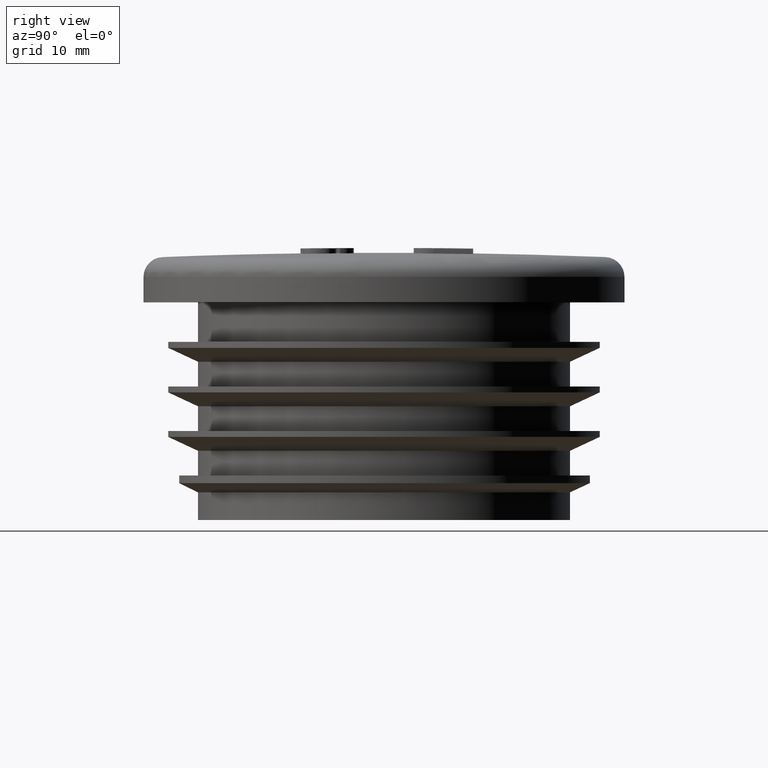
[diagram: clean part render]
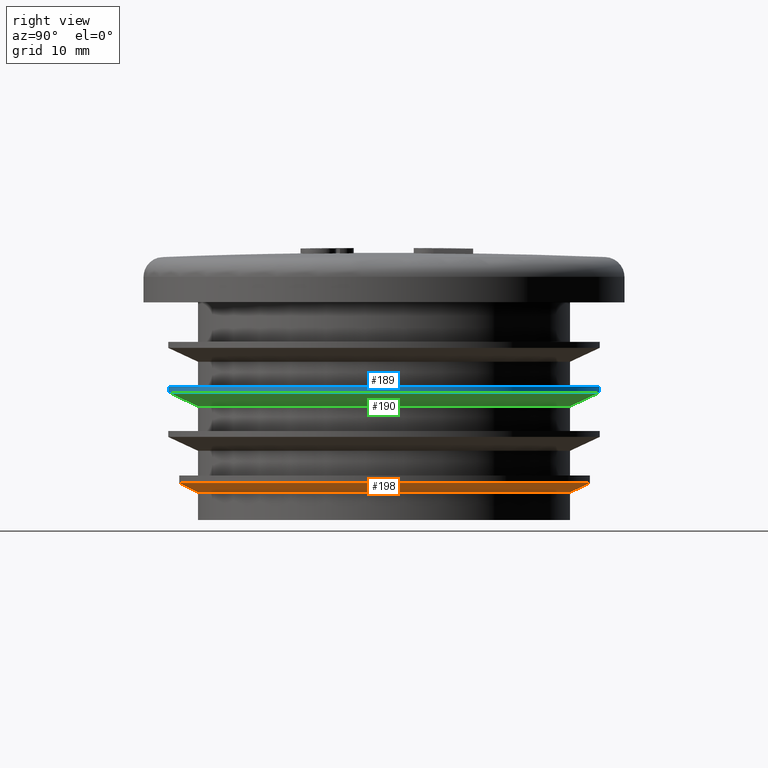
[diagram: same view with three faces highlighted in distinct colors, each labeled with its STEP entity id]
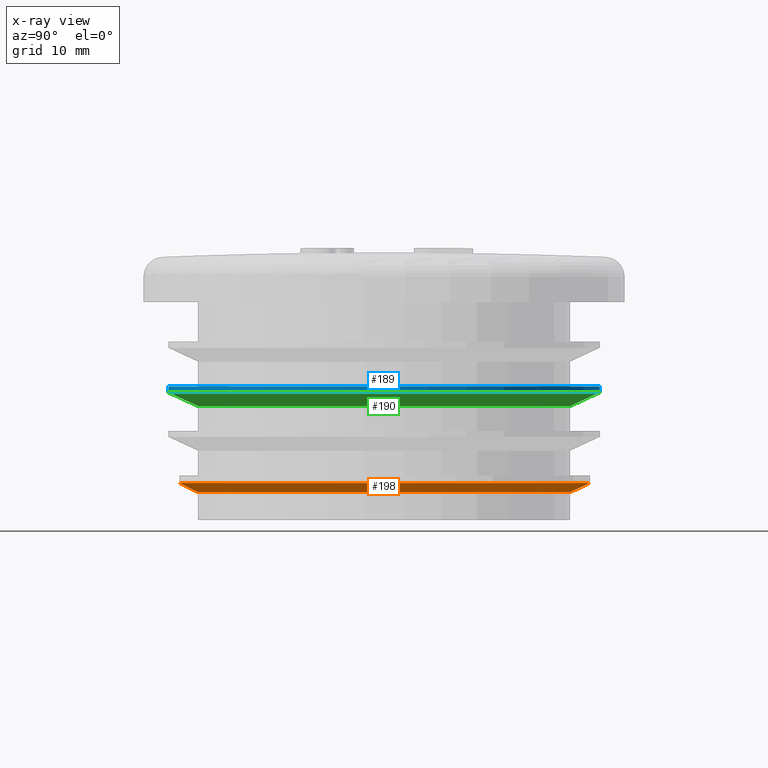
[diagram: x-ray of the same camera — body ghosted, the three highlighted faces saturated]
A machine part, right view with three faces highlighted in distinct colors.
The next image is the same camera in x-ray (body ghosted, the three faces saturated) — at least one of them is partly hidden behind the body in this view.
Their STEP definitions:

[orange] entity #198 — the highlighted conical surface has half-angle 65 deg.
#198 = ADVANCED_FACE( '', ( #491, #492 ), #493, .T. );
#491 = FACE_BOUND( '', #1132, .T. );
#492 = FACE_OUTER_BOUND( '', #1133, .T. );
#493 = CONICAL_SURFACE( '', #1134, 20.8000000000000, 1.13446401379631 );
#1132 = EDGE_LOOP( '', ( #2188 ) );
#1133 = EDGE_LOOP( '', ( #2189 ) );
#1134 = AXIS2_PLACEMENT_3D( '', #2190, #2191, #2192 );
#2188 = ORIENTED_EDGE( '', *, *, #2582, .F. );
#2189 = ORIENTED_EDGE( '', *, *, #2581, .T. );
#2190 = CARTESIAN_POINT( '', ( 0.000000000000000, -1.11851776756822E-015, 3.73261531631000 ) );
#2191 = DIRECTION( '', ( 0.000000000000000, 6.12303176911189E-017, 1.00000000000000 ) );
#2192 = DIRECTION( '', ( 0.000000000000000, -1.00000000000000, 6.12303176911189E-017 ) );
#2581 = EDGE_CURVE( '', #3118, #3118, #3119, .T. );
#2582 = EDGE_CURVE( '', #3120, #3120, #3121, .T. );
#3118 = VERTEX_POINT( '', #4954 );
#3119 = CIRCLE( '', #4955, 20.8000000000000 );
#3120 = VERTEX_POINT( '', #4956 );
#3121 = CIRCLE( '', #4957, 18.8000000000000 );
#4954 = CARTESIAN_POINT( '', ( 0.000000000000000, 20.8000000000000, 3.73261531631000 ) );
#4955 = AXIS2_PLACEMENT_3D( '', #5127, #5128, #5129 );
#4956 = CARTESIAN_POINT( '', ( 0.000000000000000, 18.8000000000000, 2.79999999999999 ) );
#4957 = AXIS2_PLACEMENT_3D( '', #5130, #5131, #5132 );
#5127 = CARTESIAN_POINT( '', ( 0.000000000000000, -1.11851776756822E-015, 3.73261531631000 ) );
#5128 = DIRECTION( '', ( 0.000000000000000, -6.12303176911189E-017, -1.00000000000000 ) );
#5129 = DIRECTION( '', ( 0.000000000000000, 1.00000000000000, -6.12303176911189E-017 ) );
#5130 = CARTESIAN_POINT( '', ( 0.000000000000000, -1.17562209966948E-015, 2.79999999999999 ) );
#5131 = DIRECTION( '', ( 0.000000000000000, -6.12303176911189E-017, -1.00000000000000 ) );
#5132 = DIRECTION( '', ( 0.000000000000000, 1.00000000000000, -6.12303176911189E-017 ) );

[blue] entity #189 — the highlighted cylindrical surface (bore or boss wall) has radius 21.8 mm, axis along (0, 0, 1).
#189 = ADVANCED_FACE( '', ( #464, #465 ), #466, .T. );
#464 = FACE_OUTER_BOUND( '', #1105, .T. );
#465 = FACE_OUTER_BOUND( '', #1106, .T. );
#466 = CYLINDRICAL_SURFACE( '', #1107, 21.8000000000000 );
#1105 = EDGE_LOOP( '', ( #2143 ) );
#1106 = EDGE_LOOP( '', ( #2144 ) );
#1107 = AXIS2_PLACEMENT_3D( '', #2145, #2146, #2147 );
#2143 = ORIENTED_EDGE( '', *, *, #2573, .F. );
#2144 = ORIENTED_EDGE( '', *, *, #2572, .T. );
#2145 = CARTESIAN_POINT( '', ( 0.000000000000000, 0.000000000000000, 22.0000000000000 ) );
#2146 = DIRECTION( '', ( 0.000000000000000, 6.12303176911189E-017, 1.00000000000000 ) );
#2147 = DIRECTION( '', ( 0.000000000000000, 1.00000000000000, -6.12303176911189E-017 ) );
#2572 = EDGE_CURVE( '', #3100, #3100, #3101, .T. );
#2573 = EDGE_CURVE( '', #3102, #3102, #3103, .T. );
#3100 = VERTEX_POINT( '', #4936 );
#3101 = CIRCLE( '', #4937, 21.8000000000000 );
#3102 = VERTEX_POINT( '', #4938 );
#3103 = CIRCLE( '', #4939, 21.8000000000000 );
#4936 = CARTESIAN_POINT( '', ( 0.000000000000000, 21.8000000000000, 13.5000000000000 ) );
#4937 = AXIS2_PLACEMENT_3D( '', #5100, #5101, #5102 );
#4938 = CARTESIAN_POINT( '', ( 0.000000000000000, 21.8000000000000, 12.8989229744650 ) );
#4939 = AXIS2_PLACEMENT_3D( '', #5103, #5104, #5105 );
#5100 = CARTESIAN_POINT( '', ( 0.000000000000000, -5.20457700374510E-016, 13.5000000000000 ) );
#5101 = DIRECTION( '', ( 0.000000000000000, -6.12303176911189E-017, -1.00000000000000 ) );
#5102 = DIRECTION( '', ( 0.000000000000000, 1.00000000000000, -6.12303176911189E-017 ) );
#5103 = CARTESIAN_POINT( '', ( 0.000000000000000, -5.57261837604851E-016, 12.8989229744650 ) );
#5104 = DIRECTION( '', ( 0.000000000000000, -6.12303176911189E-017, -1.00000000000000 ) );
#5105 = DIRECTION( '', ( 0.000000000000000, 1.00000000000000, -6.12303176911189E-017 ) );

[green] entity #190 — the highlighted conical surface has half-angle 65 deg.
#190 = ADVANCED_FACE( '', ( #467, #468 ), #469, .T. );
#467 = FACE_BOUND( '', #1108, .T. );
#468 = FACE_OUTER_BOUND( '', #1109, .T. );
#469 = CONICAL_SURFACE( '', #1110, 21.8000000000000, 1.13446401379631 );
#1108 = EDGE_LOOP( '', ( #2148 ) );
#1109 = EDGE_LOOP( '', ( #2149 ) );
#1110 = AXIS2_PLACEMENT_3D( '', #2150, #2151, #2152 );
#2148 = ORIENTED_EDGE( '', *, *, #2574, .F. );
#2149 = ORIENTED_EDGE( '', *, *, #2573, .T. );
#2150 = CARTESIAN_POINT( '', ( 0.000000000000000, -5.57261837604851E-016, 12.8989229744650 ) );
#2151 = DIRECTION( '', ( 0.000000000000000, 6.12303176911189E-017, 1.00000000000000 ) );
#2152 = DIRECTION( '', ( 0.000000000000000, -1.00000000000000, 6.12303176911189E-017 ) );
#2573 = EDGE_CURVE( '', #3102, #3102, #3103, .T. );
#2574 = EDGE_CURVE( '', #3104, #3104, #3105, .T. );
#3102 = VERTEX_POINT( '', #4938 );
#3103 = CIRCLE( '', #4939, 21.8000000000000 );
#3104 = VERTEX_POINT( '', #4940 );
#3105 = CIRCLE( '', #4941, 18.8000000000000 );
#4938 = CARTESIAN_POINT( '', ( 0.000000000000000, 21.8000000000000, 12.8989229744650 ) );
#4939 = AXIS2_PLACEMENT_3D( '', #5103, #5104, #5105 );
#4940 = CARTESIAN_POINT( '', ( 0.000000000000000, 18.8000000000000, 11.5000000000000 ) );
#4941 = AXIS2_PLACEMENT_3D( '', #5106, #5107, #5108 );
#5103 = CARTESIAN_POINT( '', ( 0.000000000000000, -5.57261837604851E-016, 12.8989229744650 ) );
#5104 = DIRECTION( '', ( 0.000000000000000, -6.12303176911189E-017, -1.00000000000000 ) );
#5105 = DIRECTION( '', ( 0.000000000000000, 1.00000000000000, -6.12303176911189E-017 ) );
#5106 = CARTESIAN_POINT( '', ( 0.000000000000000, -6.42918335756748E-016, 11.5000000000000 ) );
#5107 = DIRECTION( '', ( 0.000000000000000, -6.12303176911189E-017, -1.00000000000000 ) );
#5108 = DIRECTION( '', ( 0.000000000000000, 1.00000000000000, -6.12303176911189E-017 ) );